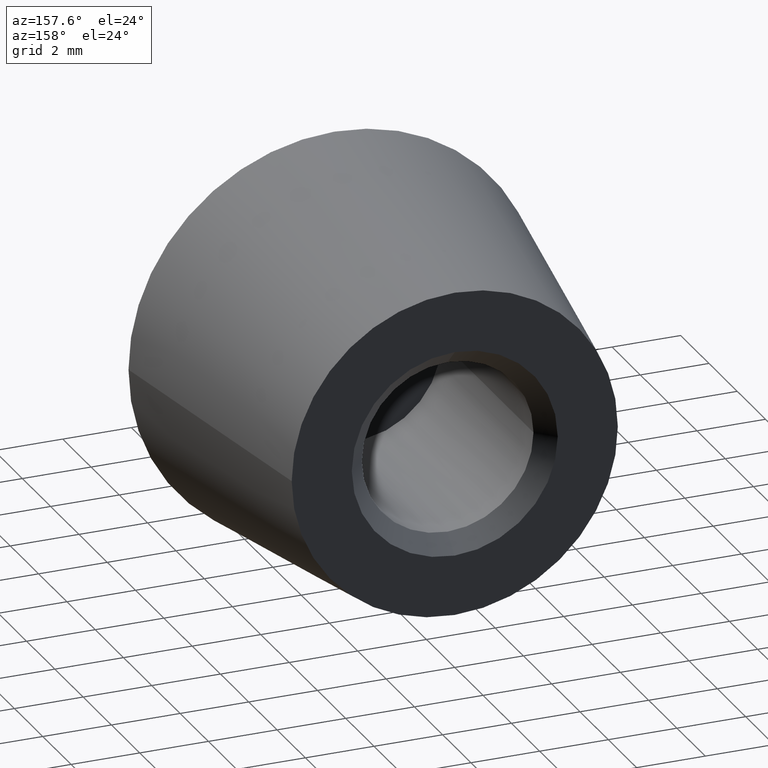
[diagram: clean part render]
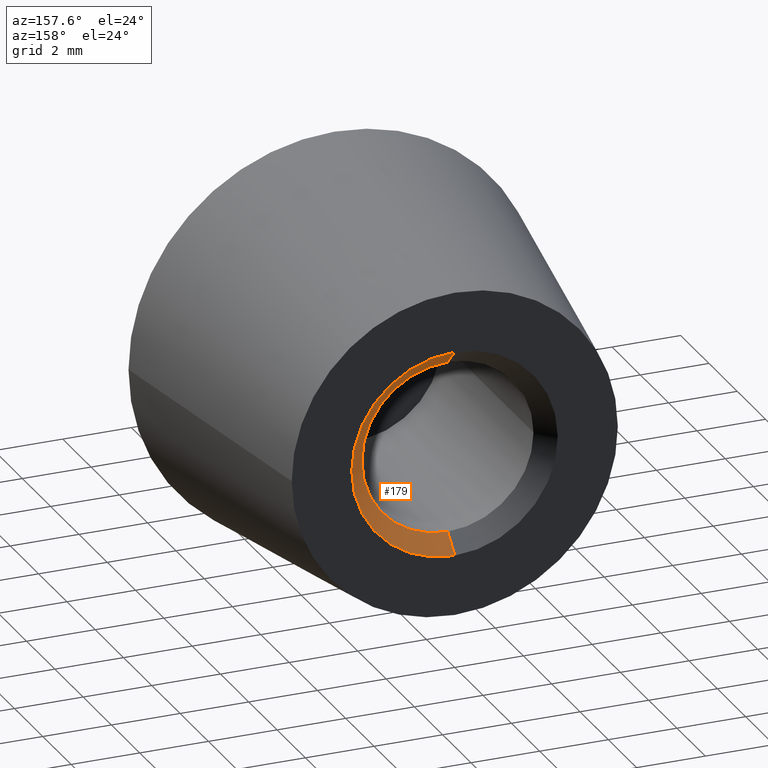
[diagram: same view with one face highlighted and labeled with its STEP entity id]
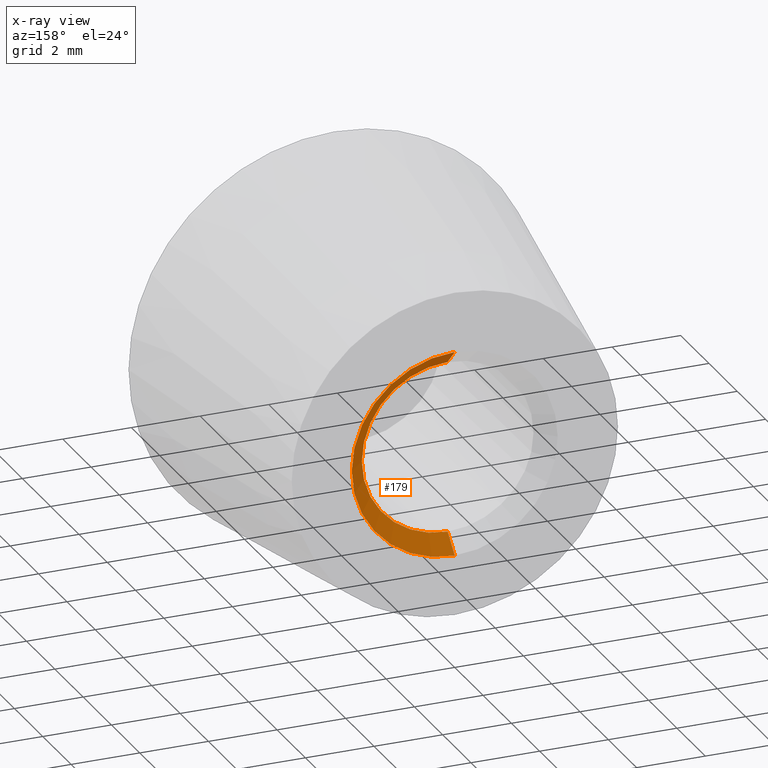
[diagram: x-ray of the same camera — body ghosted, the highlighted face saturated]
A machine part, auxiliary view. The second image highlights one B-rep face of the part: STEP entity #179.
The next image is the same camera in x-ray: the body ghosted, the highlighted face saturated — about 0% of this face is hidden behind the body in this view.
In plain terms, the highlighted conical surface has half-angle 45 deg.
Its self-contained STEP definition (entity closure, byte-faithful):
#6 = DIRECTION ( 'NONE',  ( 0.0000000000000000000, 0.0000000000000000000, 1.000000000000000000 ) ) ;
#8 = DIRECTION ( 'NONE',  ( 0.0000000000000000000, 0.0000000000000000000, -1.000000000000000000 ) ) ;
#16 = CARTESIAN_POINT ( 'NONE',  ( 3.367778697655221500E-016, -0.5000000000000064400, -2.500000000000000400 ) ) ;
#18 = CARTESIAN_POINT ( 'NONE',  ( 0.0000000000000000000, -0.5000000000000064400, 0.0000000000000000000 ) ) ;
#19 = CIRCLE ( 'NONE', #307, 2.500000000000000400 ) ;
#30 = VECTOR ( 'NONE', #116, 1000.000000000000000 ) ;
#38 = CARTESIAN_POINT ( 'NONE',  ( 0.0000000000000000000, -0.9000000000000119000, 0.0000000000000000000 ) ) ;
#43 = CARTESIAN_POINT ( 'NONE',  ( 2.500000000000000400, -0.5000000000000064400, 3.061616997868382600E-016 ) ) ;
#45 = DIRECTION ( 'NONE',  ( 0.0000000000000000000, 0.7071067811865522400, 0.7071067811865428000 ) ) ;
#46 = EDGE_CURVE ( 'NONE', #210, #274, #176, .T. ) ;
#47 = ORIENTED_EDGE ( 'NONE', *, *, #246, .T. ) ;
#52 = AXIS2_PLACEMENT_3D ( 'NONE', #38, #237, #6 ) ;
#76 = VECTOR ( 'NONE', #45, 1000.000000000000000 ) ;
#87 = DIRECTION ( 'NONE',  ( 0.0000000000000000000, 0.0000000000000000000, 1.000000000000000000 ) ) ;
#90 = CIRCLE ( 'NONE', #170, 2.500000000000000400 ) ;
#94 = EDGE_CURVE ( 'NONE', #120, #210, #168, .T. ) ;
#98 = VERTEX_POINT ( 'NONE', #285 ) ;
#99 = FACE_OUTER_BOUND ( 'NONE', #236, .T. ) ;
#112 = DIRECTION ( 'NONE',  ( 0.0000000000000000000, 0.0000000000000000000, 1.000000000000000000 ) ) ;
#116 = DIRECTION ( 'NONE',  ( 8.659560562354874900E-017, 0.7071067811865522400, -0.7071067811865428000 ) ) ;
#120 = VERTEX_POINT ( 'NONE', #16 ) ;
#123 = CARTESIAN_POINT ( 'NONE',  ( 0.0000000000000000000, -0.9000000000000119000, 2.100000000000000100 ) ) ;
#128 = VERTEX_POINT ( 'NONE', #43 ) ;
#147 = CONICAL_SURFACE ( 'NONE', #52, 2.100000000000000100, 0.7853981633974416200 ) ;
#165 = CARTESIAN_POINT ( 'NONE',  ( 0.0000000000000000000, 0.0000000000000000000, 0.0000000000000000000 ) ) ;
#168 = LINE ( 'NONE', #281, #30 ) ;
#170 = AXIS2_PLACEMENT_3D ( 'NONE', #18, #288, #87 ) ;
#171 = ORIENTED_EDGE ( 'NONE', *, *, #94, .F. ) ;
#176 = CIRCLE ( 'NONE', #311, 3.000000000000000000 ) ;
#179 = ADVANCED_FACE ( 'NONE', ( #99 ), #147, .F. ) ;
#204 = CARTESIAN_POINT ( 'NONE',  ( 0.0000000000000000000, -0.5000000000000064400, 0.0000000000000000000 ) ) ;
#210 = VERTEX_POINT ( 'NONE', #256 ) ;
#231 = DIRECTION ( 'NONE',  ( -0.0000000000000000000, -1.000000000000000000, -0.0000000000000000000 ) ) ;
#235 = EDGE_CURVE ( 'NONE', #98, #274, #315, .T. ) ;
#236 = EDGE_LOOP ( 'NONE', ( #171, #262, #47, #295, #283 ) ) ;
#237 = DIRECTION ( 'NONE',  ( 0.0000000000000000000, 1.000000000000000000, 0.0000000000000000000 ) ) ;
#246 = EDGE_CURVE ( 'NONE', #128, #98, #90, .T. ) ;
#249 = CARTESIAN_POINT ( 'NONE',  ( 0.0000000000000000000, 1.084202172485504400E-016, 3.000000000000000000 ) ) ;
#256 = CARTESIAN_POINT ( 'NONE',  ( 3.673940397442059900E-016, 1.084202172485504400E-016, -3.000000000000000000 ) ) ;
#262 = ORIENTED_EDGE ( 'NONE', *, *, #265, .T. ) ;
#265 = EDGE_CURVE ( 'NONE', #120, #128, #19, .T. ) ;
#274 = VERTEX_POINT ( 'NONE', #249 ) ;
#281 = CARTESIAN_POINT ( 'NONE',  ( 2.571758278209442000E-016, -0.9000000000000119000, -2.100000000000000100 ) ) ;
#283 = ORIENTED_EDGE ( 'NONE', *, *, #46, .F. ) ;
#285 = CARTESIAN_POINT ( 'NONE',  ( 0.0000000000000000000, -0.5000000000000064400, 2.500000000000000400 ) ) ;
#288 = DIRECTION ( 'NONE',  ( -0.0000000000000000000, -1.000000000000000000, -0.0000000000000000000 ) ) ;
#295 = ORIENTED_EDGE ( 'NONE', *, *, #235, .T. ) ;
#304 = DIRECTION ( 'NONE',  ( -0.0000000000000000000, -1.000000000000000000, -0.0000000000000000000 ) ) ;
#307 = AXIS2_PLACEMENT_3D ( 'NONE', #204, #231, #112 ) ;
#311 = AXIS2_PLACEMENT_3D ( 'NONE', #165, #304, #8 ) ;
#315 = LINE ( 'NONE', #123, #76 ) ;